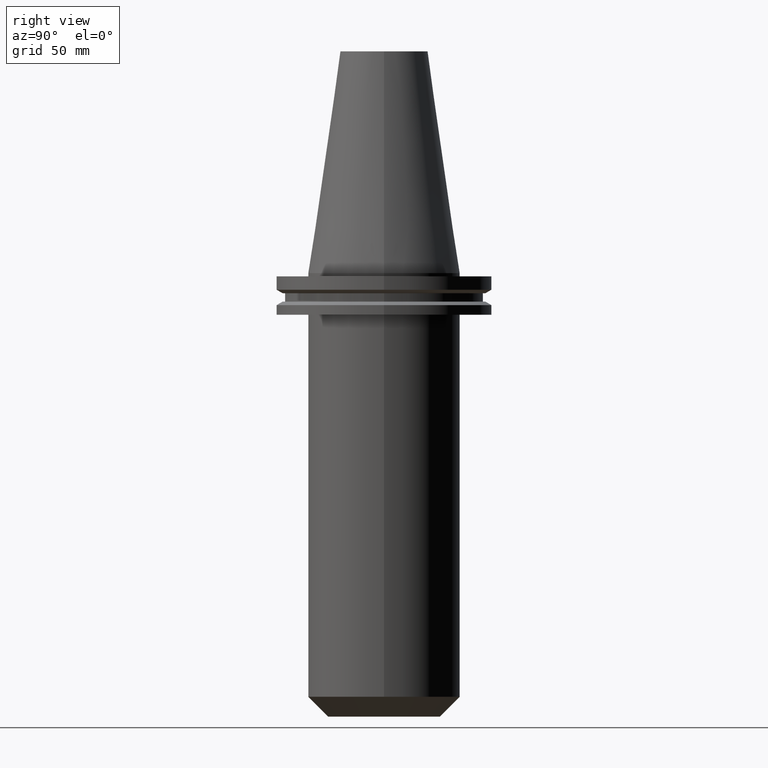
[diagram: clean part render]
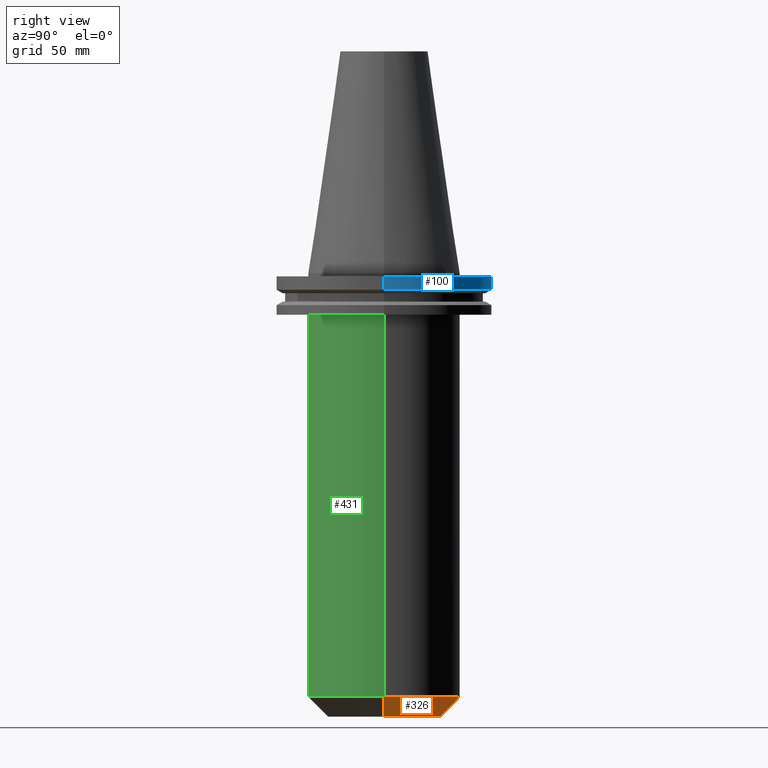
[diagram: same view with three faces highlighted in distinct colors, each labeled with its STEP entity id]
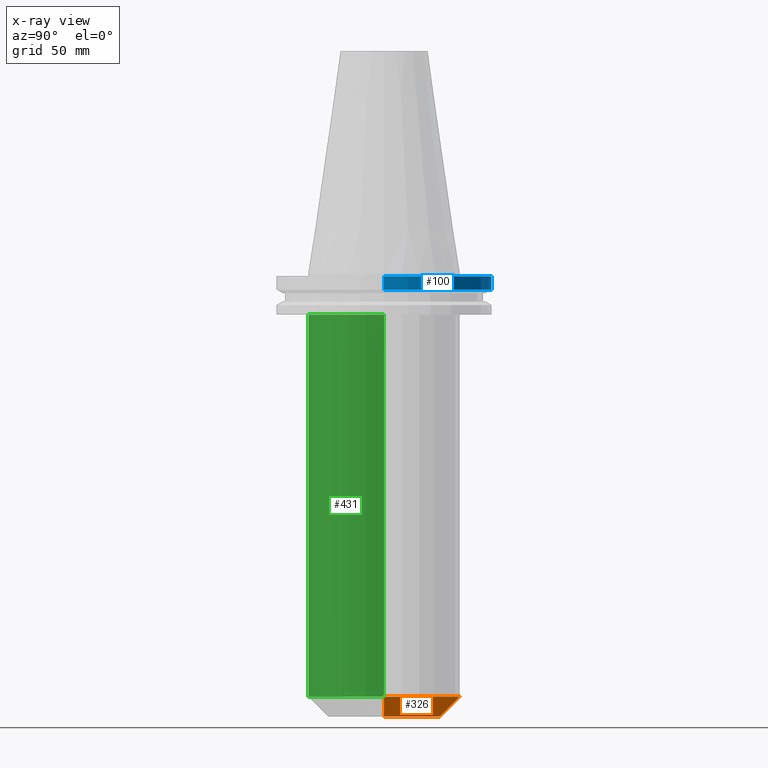
[diagram: x-ray of the same camera — body ghosted, the three highlighted faces saturated]
A machine part, right view with three faces highlighted in distinct colors.
The next image is the same camera in x-ray (body ghosted, the three faces saturated) — at least one of them is partly hidden behind the body in this view.
Their STEP definitions:

[orange] entity #326 — the highlighted conical surface has half-angle 45 deg.
#32 = VECTOR ( 'NONE', #230, 1000.000000000000000 ) ;
#56 = DIRECTION ( 'NONE',  ( 1.000000000000000000, 0.000000000000000000, 0.000000000000000000 ) ) ;
#99 = CARTESIAN_POINT ( 'NONE',  ( 25.82499999999998153, 0.000000000000000000, -203.1999999999999886 ) ) ;
#101 = DIRECTION ( 'NONE',  ( 1.000000000000000000, 0.000000000000000000, 0.000000000000000000 ) ) ;
#104 = CIRCLE ( 'NONE', #557, 25.82499999999998153 ) ;
#132 = VERTEX_POINT ( 'NONE', #215 ) ;
#173 = ORIENTED_EDGE ( 'NONE', *, *, #605, .F. ) ;
#178 = CARTESIAN_POINT ( 'NONE',  ( 0.000000000000000000, 0.000000000000000000, -203.1999999999999886 ) ) ;
#179 = VECTOR ( 'NONE', #764, 1000.000000000000000 ) ;
#180 = EDGE_CURVE ( 'NONE', #289, #132, #644, .T. ) ;
#215 = CARTESIAN_POINT ( 'NONE',  ( 34.92500000000000426, 0.000000000000000000, -194.0999999999999943 ) ) ;
#230 = DIRECTION ( 'NONE',  ( -0.7071067811865486830, 8.659560562354947649E-17, 0.7071067811865464625 ) ) ;
#247 = CARTESIAN_POINT ( 'NONE',  ( 0.000000000000000000, 0.000000000000000000, -203.1999999999999886 ) ) ;
#248 = DIRECTION ( 'NONE',  ( -0.000000000000000000, -0.000000000000000000, 1.000000000000000000 ) ) ;
#253 = DIRECTION ( 'NONE',  ( 1.000000000000000000, 0.000000000000000000, 0.000000000000000000 ) ) ;
#259 = EDGE_CURVE ( 'NONE', #280, #263, #722, .T. ) ;
#263 = VERTEX_POINT ( 'NONE', #654 ) ;
#280 = VERTEX_POINT ( 'NONE', #712 ) ;
#289 = VERTEX_POINT ( 'NONE', #485 ) ;
#326 = ADVANCED_FACE ( 'NONE', ( #428 ), #532, .T. ) ;
#345 = EDGE_LOOP ( 'NONE', ( #743, #527, #173, #553 ) ) ;
#412 = CIRCLE ( 'NONE', #438, 34.92500000000000426 ) ;
#417 = DIRECTION ( 'NONE',  ( -0.000000000000000000, -0.000000000000000000, 1.000000000000000000 ) ) ;
#420 = CARTESIAN_POINT ( 'NONE',  ( -25.82499999999998153, 3.162650358798037252E-15, -203.1999999999999886 ) ) ;
#428 = FACE_OUTER_BOUND ( 'NONE', #345, .T. ) ;
#438 = AXIS2_PLACEMENT_3D ( 'NONE', #645, #417, #101 ) ;
#485 = CARTESIAN_POINT ( 'NONE',  ( 25.82499999999998153, 0.000000000000000000, -203.1999999999999886 ) ) ;
#527 = ORIENTED_EDGE ( 'NONE', *, *, #259, .T. ) ;
#532 = CONICAL_SURFACE ( 'NONE', #772, 25.82499999999998153, 0.7853981633974498333 ) ;
#543 = DIRECTION ( 'NONE',  ( -0.000000000000000000, -0.000000000000000000, 1.000000000000000000 ) ) ;
#553 = ORIENTED_EDGE ( 'NONE', *, *, #180, .F. ) ;
#557 = AXIS2_PLACEMENT_3D ( 'NONE', #178, #248, #253 ) ;
#605 = EDGE_CURVE ( 'NONE', #132, #263, #412, .T. ) ;
#644 = LINE ( 'NONE', #99, #179 ) ;
#645 = CARTESIAN_POINT ( 'NONE',  ( 0.000000000000000000, 0.000000000000000000, -194.0999999999999943 ) ) ;
#654 = CARTESIAN_POINT ( 'NONE',  ( -34.92500000000000426, 4.277078946022131676E-15, -194.0999999999999943 ) ) ;
#666 = EDGE_CURVE ( 'NONE', #289, #280, #104, .T. ) ;
#712 = CARTESIAN_POINT ( 'NONE',  ( -25.82499999999998153, 3.719864652410084069E-15, -203.1999999999999886 ) ) ;
#722 = LINE ( 'NONE', #420, #32 ) ;
#743 = ORIENTED_EDGE ( 'NONE', *, *, #666, .T. ) ;
#764 = DIRECTION ( 'NONE',  ( 0.7071067811865486830, 0.000000000000000000, 0.7071067811865464625 ) ) ;
#772 = AXIS2_PLACEMENT_3D ( 'NONE', #247, #543, #56 ) ;

[blue] entity #100 — the highlighted cylindrical surface (partial cylindrical patch) has radius 49.215 mm, axis along (-0, -0, 1).
#10 = DIRECTION ( 'NONE',  ( -0.000000000000000000, -0.000000000000000000, 1.000000000000000000 ) ) ;
#41 = DIRECTION ( 'NONE',  ( 1.000000000000000000, 0.000000000000000000, 0.000000000000000000 ) ) ;
#47 = CARTESIAN_POINT ( 'NONE',  ( 49.21499999999999631, 0.000000000000000000, 101.5999999999999943 ) ) ;
#48 = ORIENTED_EDGE ( 'NONE', *, *, #551, .F. ) ;
#49 = DIRECTION ( 'NONE',  ( -0.000000000000000000, -0.000000000000000000, 1.000000000000000000 ) ) ;
#66 = CIRCLE ( 'NONE', #365, 49.21499999999999631 ) ;
#92 = AXIS2_PLACEMENT_3D ( 'NONE', #588, #459, #41 ) ;
#96 = ORIENTED_EDGE ( 'NONE', *, *, #565, .F. ) ;
#100 = ADVANCED_FACE ( 'NONE', ( #520 ), #632, .T. ) ;
#151 = DIRECTION ( 'NONE',  ( 1.000000000000000000, 0.000000000000000000, 0.000000000000000000 ) ) ;
#165 = VERTEX_POINT ( 'NONE', #405 ) ;
#170 = CARTESIAN_POINT ( 'NONE',  ( -49.21499999999999631, 6.027099222003697826E-15, -1.499999999999987566 ) ) ;
#214 = CARTESIAN_POINT ( 'NONE',  ( 0.000000000000000000, 0.000000000000000000, -1.499999999999987566 ) ) ;
#218 = VERTEX_POINT ( 'NONE', #604 ) ;
#228 = LINE ( 'NONE', #47, #685 ) ;
#365 = AXIS2_PLACEMENT_3D ( 'NONE', #214, #693, #151 ) ;
#375 = AXIS2_PLACEMENT_3D ( 'NONE', #547, #765, #395 ) ;
#395 = DIRECTION ( 'NONE',  ( 1.000000000000000000, 0.000000000000000000, 0.000000000000000000 ) ) ;
#405 = CARTESIAN_POINT ( 'NONE',  ( 49.21500000000000341, 0.000000000000000000, -7.602389855251287187 ) ) ;
#436 = CARTESIAN_POINT ( 'NONE',  ( -49.21499999999999631, 6.027099222003697826E-15, 101.5999999999999943 ) ) ;
#459 = DIRECTION ( 'NONE',  ( -0.000000000000000000, -0.000000000000000000, 1.000000000000000000 ) ) ;
#463 = CIRCLE ( 'NONE', #375, 49.21500000000000341 ) ;
#480 = CARTESIAN_POINT ( 'NONE',  ( -49.21500000000000341, 6.027099222003699404E-15, -7.602389855251287187 ) ) ;
#497 = LINE ( 'NONE', #436, #521 ) ;
#503 = EDGE_CURVE ( 'NONE', #165, #514, #463, .T. ) ;
#514 = VERTEX_POINT ( 'NONE', #480 ) ;
#519 = VERTEX_POINT ( 'NONE', #170 ) ;
#520 = FACE_OUTER_BOUND ( 'NONE', #699, .T. ) ;
#521 = VECTOR ( 'NONE', #10, 1000.000000000000000 ) ;
#547 = CARTESIAN_POINT ( 'NONE',  ( 0.000000000000000000, 0.000000000000000000, -7.602389855251287187 ) ) ;
#551 = EDGE_CURVE ( 'NONE', #165, #218, #228, .T. ) ;
#565 = EDGE_CURVE ( 'NONE', #218, #519, #66, .T. ) ;
#588 = CARTESIAN_POINT ( 'NONE',  ( 0.000000000000000000, 0.000000000000000000, 101.5999999999999943 ) ) ;
#604 = CARTESIAN_POINT ( 'NONE',  ( 49.21499999999999631, 0.000000000000000000, -1.499999999999987566 ) ) ;
#632 = CYLINDRICAL_SURFACE ( 'NONE', #92, 49.21499999999999631 ) ;
#670 = ORIENTED_EDGE ( 'NONE', *, *, #715, .T. ) ;
#685 = VECTOR ( 'NONE', #49, 1000.000000000000000 ) ;
#693 = DIRECTION ( 'NONE',  ( -0.000000000000000000, -0.000000000000000000, 1.000000000000000000 ) ) ;
#699 = EDGE_LOOP ( 'NONE', ( #766, #670, #96, #48 ) ) ;
#715 = EDGE_CURVE ( 'NONE', #514, #519, #497, .T. ) ;
#765 = DIRECTION ( 'NONE',  ( -0.000000000000000000, -0.000000000000000000, 1.000000000000000000 ) ) ;
#766 = ORIENTED_EDGE ( 'NONE', *, *, #503, .T. ) ;

[green] entity #431 — the highlighted cylindrical surface (partial cylindrical patch) has radius 34.925 mm, axis along (-0, -0, 1).
#1 = DIRECTION ( 'NONE',  ( -0.000000000000000000, -0.000000000000000000, 1.000000000000000000 ) ) ;
#6 = CARTESIAN_POINT ( 'NONE',  ( 0.000000000000000000, 0.000000000000000000, -19.04999999999999716 ) ) ;
#127 = AXIS2_PLACEMENT_3D ( 'NONE', #6, #537, #596 ) ;
#128 = AXIS2_PLACEMENT_3D ( 'NONE', #189, #676, #563 ) ;
#132 = VERTEX_POINT ( 'NONE', #215 ) ;
#163 = CIRCLE ( 'NONE', #127, 34.92499999999999716 ) ;
#181 = VECTOR ( 'NONE', #432, 1000.000000000000000 ) ;
#184 = CARTESIAN_POINT ( 'NONE',  ( -34.92499999999999716, 4.277078946022130887E-15, 101.5999999999999943 ) ) ;
#185 = CARTESIAN_POINT ( 'NONE',  ( 34.92499999999999716, 0.000000000000000000, 101.5999999999999943 ) ) ;
#189 = CARTESIAN_POINT ( 'NONE',  ( 0.000000000000000000, 0.000000000000000000, 101.5999999999999943 ) ) ;
#215 = CARTESIAN_POINT ( 'NONE',  ( 34.92500000000000426, 0.000000000000000000, -194.0999999999999943 ) ) ;
#225 = ORIENTED_EDGE ( 'NONE', *, *, #272, .T. ) ;
#263 = VERTEX_POINT ( 'NONE', #654 ) ;
#272 = EDGE_CURVE ( 'NONE', #132, #675, #540, .T. ) ;
#288 = VECTOR ( 'NONE', #371, 1000.000000000000000 ) ;
#318 = EDGE_CURVE ( 'NONE', #719, #675, #163, .T. ) ;
#329 = FACE_OUTER_BOUND ( 'NONE', #434, .T. ) ;
#341 = ORIENTED_EDGE ( 'NONE', *, *, #640, .T. ) ;
#371 = DIRECTION ( 'NONE',  ( -0.000000000000000000, -0.000000000000000000, 1.000000000000000000 ) ) ;
#382 = CYLINDRICAL_SURFACE ( 'NONE', #128, 34.92499999999999716 ) ;
#431 = ADVANCED_FACE ( 'NONE', ( #329 ), #382, .T. ) ;
#432 = DIRECTION ( 'NONE',  ( -0.000000000000000000, -0.000000000000000000, 1.000000000000000000 ) ) ;
#434 = EDGE_LOOP ( 'NONE', ( #709, #341, #225, #750 ) ) ;
#493 = CARTESIAN_POINT ( 'NONE',  ( -34.92499999999999716, 4.277078946022130887E-15, -19.04999999999999716 ) ) ;
#512 = CIRCLE ( 'NONE', #697, 34.92500000000000426 ) ;
#535 = CARTESIAN_POINT ( 'NONE',  ( 0.000000000000000000, 0.000000000000000000, -194.0999999999999943 ) ) ;
#537 = DIRECTION ( 'NONE',  ( -0.000000000000000000, -0.000000000000000000, 1.000000000000000000 ) ) ;
#540 = LINE ( 'NONE', #185, #288 ) ;
#563 = DIRECTION ( 'NONE',  ( 1.000000000000000000, 0.000000000000000000, 0.000000000000000000 ) ) ;
#596 = DIRECTION ( 'NONE',  ( 1.000000000000000000, 0.000000000000000000, 0.000000000000000000 ) ) ;
#640 = EDGE_CURVE ( 'NONE', #263, #132, #512, .T. ) ;
#654 = CARTESIAN_POINT ( 'NONE',  ( -34.92500000000000426, 4.277078946022131676E-15, -194.0999999999999943 ) ) ;
#664 = LINE ( 'NONE', #184, #181 ) ;
#675 = VERTEX_POINT ( 'NONE', #720 ) ;
#676 = DIRECTION ( 'NONE',  ( -0.000000000000000000, -0.000000000000000000, 1.000000000000000000 ) ) ;
#697 = AXIS2_PLACEMENT_3D ( 'NONE', #535, #1, #714 ) ;
#709 = ORIENTED_EDGE ( 'NONE', *, *, #721, .F. ) ;
#714 = DIRECTION ( 'NONE',  ( 1.000000000000000000, 0.000000000000000000, 0.000000000000000000 ) ) ;
#719 = VERTEX_POINT ( 'NONE', #493 ) ;
#720 = CARTESIAN_POINT ( 'NONE',  ( 34.92499999999999716, 0.000000000000000000, -19.04999999999999716 ) ) ;
#721 = EDGE_CURVE ( 'NONE', #263, #719, #664, .T. ) ;
#750 = ORIENTED_EDGE ( 'NONE', *, *, #318, .F. ) ;